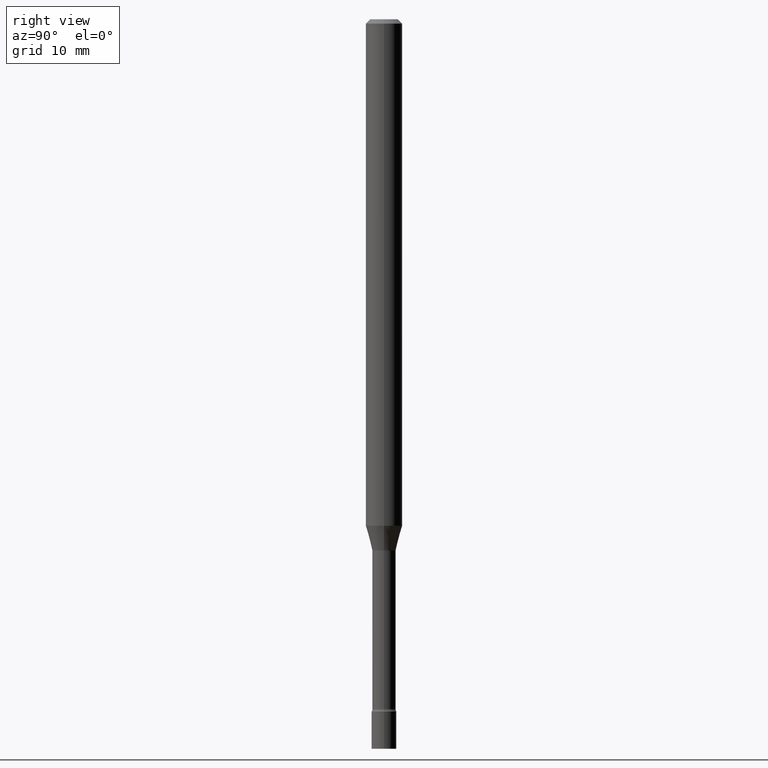
[diagram: clean part render]
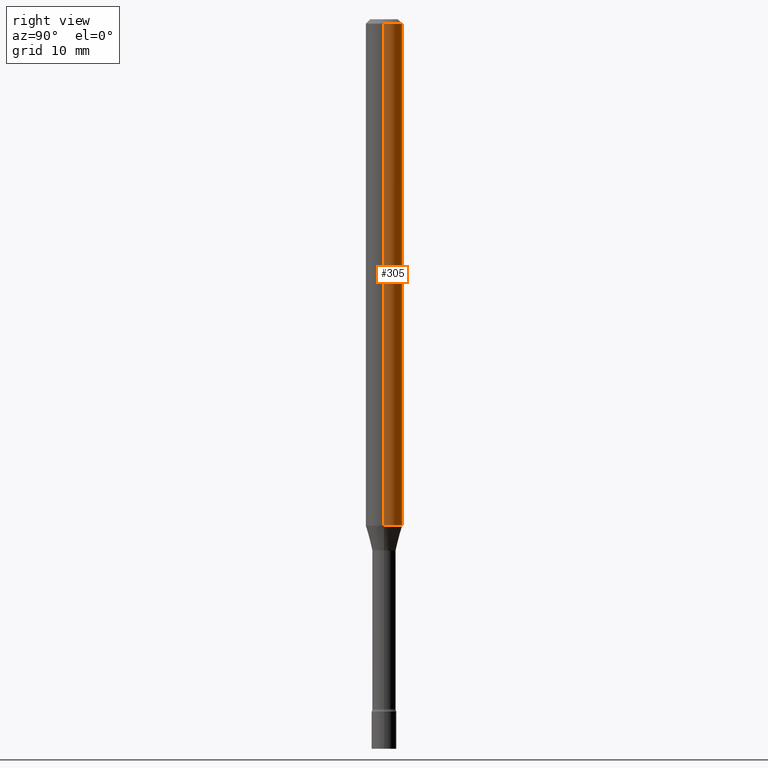
[diagram: same view with one face highlighted and labeled with its STEP entity id]
A machine part, right view. The second image highlights one B-rep face of the part: STEP entity #305.
In plain terms, the highlighted cylindrical surface (edge-blend (fillet) strip) has radius 1.5875 mm, axis along (-0, 0, 1).
Its self-contained STEP definition (entity closure, byte-faithful):
#21 = LINE ( 'NONE', #135, #291 ) ;
#25 = EDGE_CURVE ( 'NONE', #298, #349, #300, .T. ) ;
#38 = DIRECTION ( 'NONE',  ( -2.445468806185136877E-29, 3.491481338843145188E-15, 1.000000000000000000 ) ) ;
#68 = AXIS2_PLACEMENT_3D ( 'NONE', #327, #373, #169 ) ;
#74 = DIRECTION ( 'NONE',  ( 1.000000000000000000, -6.982962677686266711E-15, 4.876176775795935793E-29 ) ) ;
#92 = ORIENTED_EDGE ( 'NONE', *, *, #504, .T. ) ;
#99 = VERTEX_POINT ( 'NONE', #206 ) ;
#135 = CARTESIAN_POINT ( 'NONE',  ( 0.06250000000000000000, -4.364351673553916694E-16, 3.047610484872459871E-30 ) ) ;
#139 = CIRCLE ( 'NONE', #68, 0.06250000000000000000 ) ;
#148 = ORIENTED_EDGE ( 'NONE', *, *, #25, .T. ) ;
#149 = CARTESIAN_POINT ( 'NONE',  ( 0.06250000000000000000, -6.497096005381978021E-15, -1.735842254289321929 ) ) ;
#166 = LINE ( 'NONE', #401, #387 ) ;
#169 = DIRECTION ( 'NONE',  ( 1.000000000000000000, -6.982962677686266711E-15, 0.000000000000000000 ) ) ;
#182 = ORIENTED_EDGE ( 'NONE', *, *, #219, .F. ) ;
#192 = CARTESIAN_POINT ( 'NONE',  ( 0.06250000000000000000, -4.888073874380389458E-16, -0.01500000000000003067 ) ) ;
#206 = CARTESIAN_POINT ( 'NONE',  ( -0.06250000000000000000, -2.612427319204554296E-15, -0.01500000000000003067 ) ) ;
#219 = EDGE_CURVE ( 'NONE', #298, #381, #21, .T. ) ;
#239 = CARTESIAN_POINT ( 'NONE',  ( -0.06250000000000000000, -5.616571628176523735E-15, -1.735842254289321929 ) ) ;
#241 = CARTESIAN_POINT ( 'NONE',  ( 4.244948085322624823E-29, -6.060660838026585563E-15, -1.735842254289321929 ) ) ;
#274 = AXIS2_PLACEMENT_3D ( 'NONE', #241, #361, #476 ) ;
#291 = VECTOR ( 'NONE', #497, 39.37007874015748143 ) ;
#298 = VERTEX_POINT ( 'NONE', #149 ) ;
#300 = CIRCLE ( 'NONE', #274, 0.06250000000000000000 ) ;
#301 = AXIS2_PLACEMENT_3D ( 'NONE', #308, #438, #74 ) ;
#305 = ADVANCED_FACE ( 'NONE', ( #512 ), #314, .T. ) ;
#308 = CARTESIAN_POINT ( 'NONE',  ( 0.000000000000000000, 0.000000000000000000, 0.000000000000000000 ) ) ;
#314 = CYLINDRICAL_SURFACE ( 'NONE', #301, 0.06250000000000000000 ) ;
#327 = CARTESIAN_POINT ( 'NONE',  ( 3.668203209277712094E-31, -5.237222008264728876E-17, -0.01500000000000003067 ) ) ;
#349 = VERTEX_POINT ( 'NONE', #239 ) ;
#361 = DIRECTION ( 'NONE',  ( -2.445468806185136597E-29, 3.491481338843145583E-15, 1.000000000000000000 ) ) ;
#373 = DIRECTION ( 'NONE',  ( -2.445468806185136597E-29, 3.491481338843145583E-15, 1.000000000000000000 ) ) ;
#381 = VERTEX_POINT ( 'NONE', #192 ) ;
#387 = VECTOR ( 'NONE', #38, 39.37007874015748143 ) ;
#399 = EDGE_CURVE ( 'NONE', #381, #99, #139, .T. ) ;
#401 = CARTESIAN_POINT ( 'NONE',  ( -0.06250000000000000000, 4.440892098500626162E-16, -3.074334431409316114E-30 ) ) ;
#410 = EDGE_LOOP ( 'NONE', ( #148, #92, #488, #182 ) ) ;
#438 = DIRECTION ( 'NONE',  ( -2.445468806185136597E-29, 3.491481338843145583E-15, 1.000000000000000000 ) ) ;
#476 = DIRECTION ( 'NONE',  ( 1.000000000000000000, -6.982962677686262766E-15, 0.000000000000000000 ) ) ;
#488 = ORIENTED_EDGE ( 'NONE', *, *, #399, .F. ) ;
#497 = DIRECTION ( 'NONE',  ( -2.445468806185136877E-29, 3.491481338843145188E-15, 1.000000000000000000 ) ) ;
#504 = EDGE_CURVE ( 'NONE', #349, #99, #166, .T. ) ;
#512 = FACE_OUTER_BOUND ( 'NONE', #410, .T. ) ;